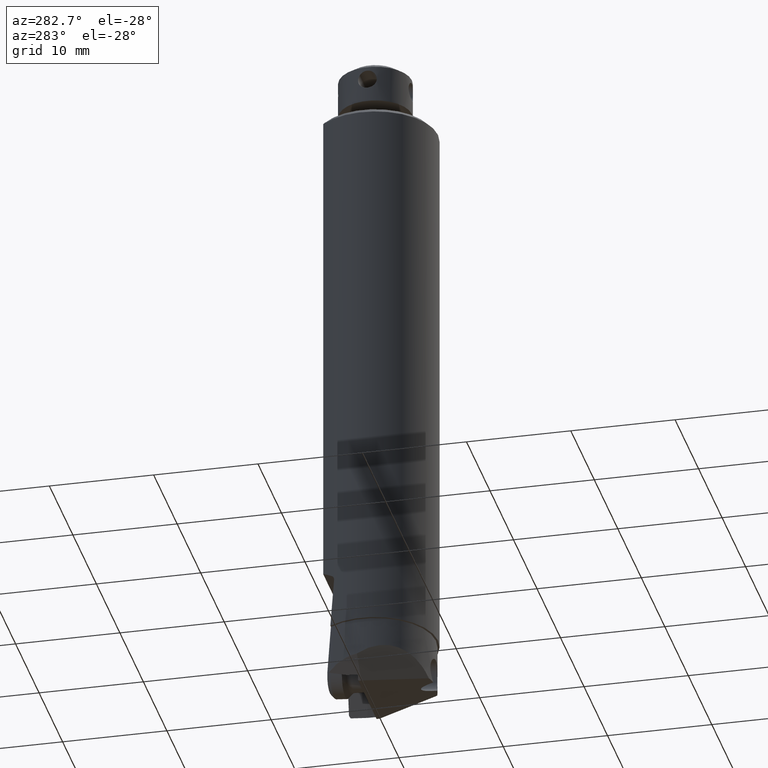
[diagram: clean part render]
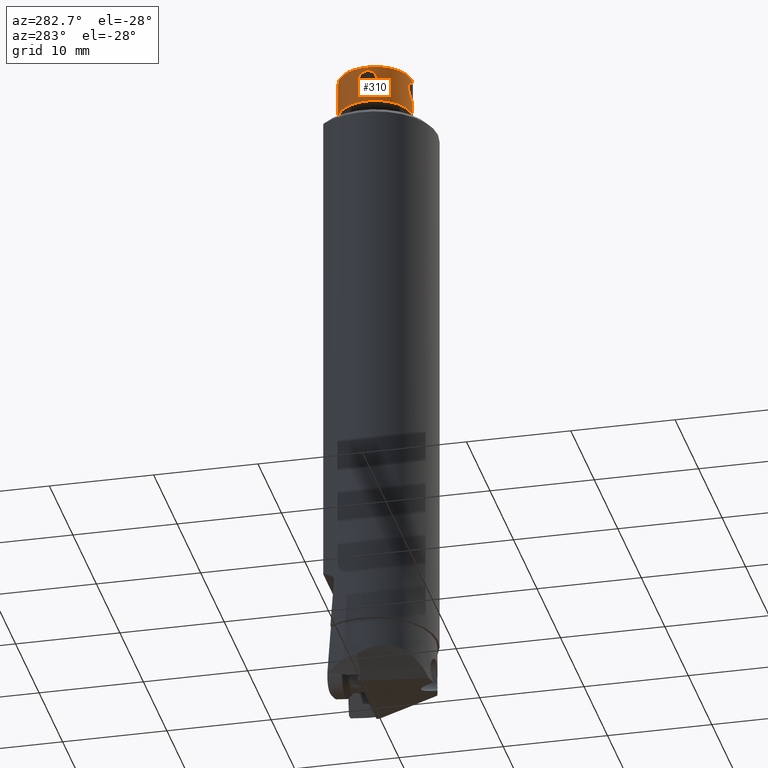
[diagram: same view with one face highlighted and labeled with its STEP entity id]
A machine part, auxiliary view. The second image highlights one B-rep face of the part: STEP entity #310.
In plain terms, the highlighted cylindrical surface (partial cylindrical patch) has radius 3.5 mm, axis along (0, 0, -1).
Its self-contained STEP definition (entity closure, byte-faithful):
#95=CYLINDRICAL_SURFACE('',#1784,3.5);
#235=B_SPLINE_CURVE_WITH_KNOTS('',3,(#2981,#2982,#2983,#2984,#2985,#2986,
#2987,#2988,#2989,#2990,#2991,#2992,#2993,#2994,#2995,#2996,#2997,#2998,
#2999,#3000,#3001,#3002,#3003,#3004,#3005,#3006,#3007,#3008,#3009,#3010,
#3011),.UNSPECIFIED.,.F.,.F.,(4,3,3,3,3,3,3,3,3,3,4),(0.,0.105055592854219,
0.209973483271902,0.316968257273214,0.425721338797996,0.532143976428389,
0.635744158866789,0.740441191041927,0.848379247550177,0.956767143181926,
1.),.UNSPECIFIED.);
#237=B_SPLINE_CURVE_WITH_KNOTS('',3,(#3059,#3060,#3061,#3062,#3063,#3064,
#3065,#3066,#3067,#3068,#3069,#3070,#3071,#3072,#3073,#3074,#3075,#3076,
#3077,#3078,#3079,#3080,#3081,#3082,#3083,#3084,#3085,#3086,#3087,#3088,
#3089),.UNSPECIFIED.,.F.,.F.,(4,3,3,3,3,3,3,3,3,3,4),(0.,0.105055592854219,
0.209973483271902,0.316968257273214,0.425721338797995,0.532143976428389,
0.635744158866789,0.740441191041927,0.848379247550177,0.956767143181926,
1.),.UNSPECIFIED.);
#238=B_SPLINE_CURVE_WITH_KNOTS('',3,(#3092,#3093,#3094,#3095,#3096,#3097,
#3098,#3099,#3100,#3101,#3102,#3103,#3104,#3105,#3106,#3107,#3108,#3109,
#3110,#3111,#3112,#3113,#3114,#3115,#3116,#3117,#3118,#3119,#3120,#3121,
#3122),.UNSPECIFIED.,.F.,.F.,(4,3,3,3,3,3,3,3,3,3,4),(0.,0.105055592854219,
0.209973483271902,0.316968257273214,0.425721338797995,0.532143976428389,
0.635744158866789,0.740441191041927,0.848379247550177,0.956767143181926,
1.),.UNSPECIFIED.);
#239=B_SPLINE_CURVE_WITH_KNOTS('',3,(#3123,#3124,#3125,#3126,#3127,#3128,
#3129,#3130,#3131,#3132,#3133,#3134,#3135,#3136,#3137,#3138,#3139,#3140,
#3141,#3142,#3143,#3144,#3145,#3146,#3147,#3148,#3149,#3150,#3151,#3152,
#3153),.UNSPECIFIED.,.F.,.F.,(4,3,3,3,3,3,3,3,3,3,4),(0.,0.105055592854219,
0.209973483271902,0.316968257273214,0.425721338797995,0.532143976428389,
0.635744158866789,0.740441191041927,0.848379247550177,0.956767143181926,
1.),.UNSPECIFIED.);
#310=ADVANCED_FACE('',(#382,#383),#95,.T.);
#382=FACE_BOUND('',#442,.T.);
#383=FACE_BOUND('',#443,.T.);
#442=EDGE_LOOP('',(#943,#944,#945,#946,#947,#948,#949,#950));
#443=EDGE_LOOP('',(#951,#952));
#543=LINE('',#2747,#639);
#544=LINE('',#2752,#640);
#545=LINE('',#2786,#641);
#546=LINE('',#2787,#642);
#639=VECTOR('',#2144,1.);
#640=VECTOR('',#2147,1.);
#641=VECTOR('',#2148,1.);
#642=VECTOR('',#2149,1.);
#943=ORIENTED_EDGE('',*,*,#1412,.F.);
#944=ORIENTED_EDGE('',*,*,#1432,.T.);
#945=ORIENTED_EDGE('',*,*,#1410,.F.);
#946=ORIENTED_EDGE('',*,*,#1433,.T.);
#947=ORIENTED_EDGE('',*,*,#1415,.F.);
#948=ORIENTED_EDGE('',*,*,#1407,.T.);
#949=ORIENTED_EDGE('',*,*,#1414,.F.);
#950=ORIENTED_EDGE('',*,*,#1427,.T.);
#951=ORIENTED_EDGE('',*,*,#1431,.T.);
#952=ORIENTED_EDGE('',*,*,#1434,.F.);
#1222=VERTEX_POINT('',#2742);
#1223=VERTEX_POINT('',#2743);
#1224=VERTEX_POINT('',#2748);
#1225=VERTEX_POINT('',#2749);
#1226=VERTEX_POINT('',#2751);
#1227=VERTEX_POINT('',#2753);
#1228=VERTEX_POINT('',#2785);
#1229=VERTEX_POINT('',#2788);
#1234=VERTEX_POINT('',#3056);
#1235=VERTEX_POINT('',#3058);
#1407=EDGE_CURVE('',#1222,#1223,#1556,.T.);
#1410=EDGE_CURVE('',#1224,#1225,#543,.T.);
#1412=EDGE_CURVE('',#1226,#1227,#544,.T.);
#1414=EDGE_CURVE('',#1228,#1223,#545,.T.);
#1415=EDGE_CURVE('',#1222,#1229,#546,.T.);
#1427=EDGE_CURVE('',#1228,#1227,#235,.T.);
#1431=EDGE_CURVE('',#1234,#1235,#237,.T.);
#1432=EDGE_CURVE('',#1226,#1225,#1560,.T.);
#1433=EDGE_CURVE('',#1224,#1229,#238,.T.);
#1434=EDGE_CURVE('',#1234,#1235,#239,.T.);
#1556=CIRCLE('',#1771,3.5);
#1560=CIRCLE('',#1783,3.5);
#1771=AXIS2_PLACEMENT_3D('',#2741,#2136,#2137);
#1783=AXIS2_PLACEMENT_3D('',#3091,#2172,#2173);
#1784=AXIS2_PLACEMENT_3D('',#3154,#2174,#2175);
#2136=DIRECTION('',(0.,0.,1.));
#2137=DIRECTION('',(0.,1.,0.));
#2144=DIRECTION('',(0.,1.218148624344E-13,1.));
#2147=DIRECTION('',(0.,5.971316786002E-14,-1.));
#2148=DIRECTION('',(0.,0.,-1.));
#2149=DIRECTION('',(0.,0.,1.));
#2172=DIRECTION('',(0.,0.,-1.));
#2173=DIRECTION('',(0.,-1.,0.));
#2174=DIRECTION('',(0.,0.,-1.));
#2175=DIRECTION('',(0.,-1.,0.));
#2741=CARTESIAN_POINT('',(0.,0.,2.));
#2742=CARTESIAN_POINT('',(0.,3.5,2.));
#2743=CARTESIAN_POINT('',(0.,-3.5,2.));
#2747=CARTESIAN_POINT('',(0.,3.5,5.2));
#2748=CARTESIAN_POINT('',(-5.88435878573898E-44,3.5,5.2));
#2749=CARTESIAN_POINT('',(0.,3.5,5.571851993258));
#2751=CARTESIAN_POINT('',(0.,-3.5,5.571851993258));
#2752=CARTESIAN_POINT('',(0.,-3.5,5.571851993258));
#2753=CARTESIAN_POINT('',(0.,-3.49999999999999,5.2));
#2785=CARTESIAN_POINT('',(-5.81593600916062E-44,-3.5,3.4));
#2786=CARTESIAN_POINT('',(0.,-3.5,3.4));
#2787=CARTESIAN_POINT('',(0.,3.5,2.));
#2788=CARTESIAN_POINT('',(0.,3.5,3.4));
#2981=CARTESIAN_POINT('',(-5.81593600916062E-44,-3.5,3.4));
#2982=CARTESIAN_POINT('',(-0.0989218744088053,-3.5,3.4));
#2983=CARTESIAN_POINT('',(-0.199201916507027,-3.49557967444679,3.41679958258184));
#2984=CARTESIAN_POINT('',(-0.292462345289609,-3.48775942068654,3.44884444630391));
#2985=CARTESIAN_POINT('',(-0.385653293282061,-3.47994499316382,3.48086543599408));
#2986=CARTESIAN_POINT('',(-0.474388112269073,-3.46858914699378,3.52891383947833));
#2987=CARTESIAN_POINT('',(-0.551858996280658,-3.45621927085422,3.58904877226064));
#2988=CARTESIAN_POINT('',(-0.630843494678761,-3.44360771395004,3.65035861224264));
#2989=CARTESIAN_POINT('',(-0.700299070238034,-3.42967869961967,3.725898222561));
#2990=CARTESIAN_POINT('',(-0.754795952742115,-3.41764291138266,3.80981322975408));
#2991=CARTESIAN_POINT('',(-0.810138523078682,-3.40542035063318,3.89503043805089));
#2992=CARTESIAN_POINT('',(-0.851572551095844,-3.39491180861869,3.99135667712239));
#2993=CARTESIAN_POINT('',(-0.875328496513038,-3.38877559351342,4.09071544922708));
#2994=CARTESIAN_POINT('',(-0.898578079927212,-3.38277017287316,4.18795637226379));
#2995=CARTESIAN_POINT('',(-0.905506381035334,-3.38085294249583,4.29086203705817));
#2996=CARTESIAN_POINT('',(-0.895440198946558,-3.3835169351003,4.39048121413061));
#2997=CARTESIAN_POINT('',(-0.885631064213395,-3.38611290069629,4.48755654232281));
#2998=CARTESIAN_POINT('',(-0.859473070074471,-3.39308357164788,4.58414594943094));
#2999=CARTESIAN_POINT('',(-0.819268796346518,-3.40276338280124,4.67255689408858));
#3000=CARTESIAN_POINT('',(-0.778627708509221,-3.41254836382077,4.76192841195065));
#3001=CARTESIAN_POINT('',(-0.722599852143059,-3.42527455332161,4.84536300404751));
#3002=CARTESIAN_POINT('',(-0.655570363322954,-3.43805577306893,4.91662589852569));
#3003=CARTESIAN_POINT('',(-0.586519721728767,-3.45122238733743,4.99003759645439));
#3004=CARTESIAN_POINT('',(-0.503863099113152,-3.46472070332632,5.05255449024743));
#3005=CARTESIAN_POINT('',(-0.414123309070958,-3.47541391561985,5.09906312947359));
#3006=CARTESIAN_POINT('',(-0.324070858984615,-3.48614438385332,5.14573380822743));
#3007=CARTESIAN_POINT('',(-0.224275541302938,-3.49426790521123,5.17754803355981));
#3008=CARTESIAN_POINT('',(-0.123305038298164,-3.49782730670488,5.1915132458524));
#3009=CARTESIAN_POINT('',(-0.0825131725552305,-3.49926529724204,5.19715516154024));
#3010=CARTESIAN_POINT('',(-0.0412052829161883,-3.49999999999999,5.2));
#3011=CARTESIAN_POINT('',(0.,-3.49999999999999,5.2));
#3056=CARTESIAN_POINT('',(-3.5,0.,5.2));
#3058=CARTESIAN_POINT('',(-3.5,5.81593600916062E-44,3.4));
#3059=CARTESIAN_POINT('',(-3.5,0.,5.2));
#3060=CARTESIAN_POINT('',(-3.5,-0.0989218744088053,5.2));
#3061=CARTESIAN_POINT('',(-3.49557967444679,-0.199201916507027,5.18320041741816));
#3062=CARTESIAN_POINT('',(-3.48775942068654,-0.292462345289609,5.15115555369609));
#3063=CARTESIAN_POINT('',(-3.47994499316382,-0.385653293282061,5.11913456400592));
#3064=CARTESIAN_POINT('',(-3.46858914699378,-0.474388112269073,5.07108616052167));
#3065=CARTESIAN_POINT('',(-3.45621927085422,-0.551858996280658,5.01095122773936));
#3066=CARTESIAN_POINT('',(-3.44360771395004,-0.630843494678761,4.94964138775736));
#3067=CARTESIAN_POINT('',(-3.42967869961967,-0.700299070238035,4.87410177743901));
#3068=CARTESIAN_POINT('',(-3.41764291138266,-0.754795952742115,4.79018677024592));
#3069=CARTESIAN_POINT('',(-3.40542035063318,-0.810138523078682,4.70496956194911));
#3070=CARTESIAN_POINT('',(-3.39491180861869,-0.851572551095843,4.60864332287761));
#3071=CARTESIAN_POINT('',(-3.38877559351342,-0.875328496513038,4.50928455077292));
#3072=CARTESIAN_POINT('',(-3.38277017287316,-0.898578079927212,4.41204362773621));
#3073=CARTESIAN_POINT('',(-3.38085294249583,-0.905506381035334,4.30913796294183));
#3074=CARTESIAN_POINT('',(-3.3835169351003,-0.895440198946558,4.20951878586939));
#3075=CARTESIAN_POINT('',(-3.38611290069629,-0.885631064213395,4.11244345767719));
#3076=CARTESIAN_POINT('',(-3.39308357164788,-0.859473070074472,4.01585405056906));
#3077=CARTESIAN_POINT('',(-3.40276338280124,-0.819268796346518,3.92744310591142));
#3078=CARTESIAN_POINT('',(-3.41254836382077,-0.778627708509221,3.83807158804935));
#3079=CARTESIAN_POINT('',(-3.42527455332161,-0.722599852143059,3.75463699595249));
#3080=CARTESIAN_POINT('',(-3.43805577306893,-0.655570363322954,3.68337410147431));
#3081=CARTESIAN_POINT('',(-3.45122238733743,-0.586519721728767,3.60996240354561));
#3082=CARTESIAN_POINT('',(-3.46472070332632,-0.503863099113152,3.54744550975257));
#3083=CARTESIAN_POINT('',(-3.47541391561985,-0.414123309070959,3.50093687052641));
#3084=CARTESIAN_POINT('',(-3.48614438385332,-0.324070858984616,3.45426619177257));
#3085=CARTESIAN_POINT('',(-3.49426790521123,-0.224275541302939,3.42245196644019));
#3086=CARTESIAN_POINT('',(-3.49782730670488,-0.123305038298164,3.4084867541476));
#3087=CARTESIAN_POINT('',(-3.49926529724204,-0.0825131725552306,3.40284483845976));
#3088=CARTESIAN_POINT('',(-3.5,-0.0412052829161885,3.4));
#3089=CARTESIAN_POINT('',(-3.5,5.81593600916062E-44,3.4));
#3091=CARTESIAN_POINT('',(0.,0.,5.571851993258));
#3092=CARTESIAN_POINT('',(-5.88435878573898E-44,3.5,5.2));
#3093=CARTESIAN_POINT('',(-0.0989218744088053,3.5,5.2));
#3094=CARTESIAN_POINT('',(-0.199201916507027,3.49557967444679,5.18320041741816));
#3095=CARTESIAN_POINT('',(-0.292462345289609,3.48775942068654,5.15115555369609));
#3096=CARTESIAN_POINT('',(-0.385653293282061,3.47994499316382,5.11913456400592));
#3097=CARTESIAN_POINT('',(-0.474388112269073,3.46858914699378,5.07108616052167));
#3098=CARTESIAN_POINT('',(-0.551858996280658,3.45621927085422,5.01095122773936));
#3099=CARTESIAN_POINT('',(-0.630843494678761,3.44360771395004,4.94964138775736));
#3100=CARTESIAN_POINT('',(-0.700299070238035,3.42967869961967,4.87410177743901));
#3101=CARTESIAN_POINT('',(-0.754795952742115,3.41764291138266,4.79018677024592));
#3102=CARTESIAN_POINT('',(-0.810138523078682,3.40542035063318,4.70496956194911));
#3103=CARTESIAN_POINT('',(-0.851572551095843,3.39491180861869,4.60864332287761));
#3104=CARTESIAN_POINT('',(-0.875328496513038,3.38877559351342,4.50928455077292));
#3105=CARTESIAN_POINT('',(-0.898578079927212,3.38277017287316,4.41204362773621));
#3106=CARTESIAN_POINT('',(-0.905506381035334,3.38085294249583,4.30913796294183));
#3107=CARTESIAN_POINT('',(-0.895440198946558,3.3835169351003,4.20951878586939));
#3108=CARTESIAN_POINT('',(-0.885631064213395,3.38611290069629,4.11244345767719));
#3109=CARTESIAN_POINT('',(-0.859473070074472,3.39308357164788,4.01585405056906));
#3110=CARTESIAN_POINT('',(-0.819268796346518,3.40276338280124,3.92744310591142));
#3111=CARTESIAN_POINT('',(-0.778627708509221,3.41254836382077,3.83807158804935));
#3112=CARTESIAN_POINT('',(-0.722599852143059,3.42527455332161,3.75463699595249));
#3113=CARTESIAN_POINT('',(-0.655570363322954,3.43805577306893,3.68337410147431));
#3114=CARTESIAN_POINT('',(-0.586519721728767,3.45122238733743,3.60996240354561));
#3115=CARTESIAN_POINT('',(-0.503863099113152,3.46472070332632,3.54744550975257));
#3116=CARTESIAN_POINT('',(-0.414123309070959,3.47541391561985,3.50093687052641));
#3117=CARTESIAN_POINT('',(-0.324070858984616,3.48614438385332,3.45426619177257));
#3118=CARTESIAN_POINT('',(-0.224275541302939,3.49426790521123,3.42245196644019));
#3119=CARTESIAN_POINT('',(-0.123305038298164,3.49782730670488,3.4084867541476));
#3120=CARTESIAN_POINT('',(-0.0825131725552306,3.49926529724204,3.40284483845976));
#3121=CARTESIAN_POINT('',(-0.0412052829161885,3.5,3.4));
#3122=CARTESIAN_POINT('',(0.,3.5,3.4));
#3123=CARTESIAN_POINT('',(-3.5,0.,5.2));
#3124=CARTESIAN_POINT('',(-3.5,0.0989218744088053,5.2));
#3125=CARTESIAN_POINT('',(-3.49557967444679,0.199201916507027,5.18320041741816));
#3126=CARTESIAN_POINT('',(-3.48775942068654,0.292462345289609,5.15115555369609));
#3127=CARTESIAN_POINT('',(-3.47994499316382,0.385653293282061,5.11913456400592));
#3128=CARTESIAN_POINT('',(-3.46858914699378,0.474388112269073,5.07108616052167));
#3129=CARTESIAN_POINT('',(-3.45621927085422,0.551858996280658,5.01095122773936));
#3130=CARTESIAN_POINT('',(-3.44360771395004,0.630843494678761,4.94964138775736));
#3131=CARTESIAN_POINT('',(-3.42967869961967,0.700299070238035,4.87410177743901));
#3132=CARTESIAN_POINT('',(-3.41764291138266,0.754795952742115,4.79018677024592));
#3133=CARTESIAN_POINT('',(-3.40542035063318,0.810138523078682,4.70496956194911));
#3134=CARTESIAN_POINT('',(-3.39491180861869,0.851572551095843,4.60864332287761));
#3135=CARTESIAN_POINT('',(-3.38877559351342,0.875328496513038,4.50928455077292));
#3136=CARTESIAN_POINT('',(-3.38277017287316,0.898578079927212,4.41204362773621));
#3137=CARTESIAN_POINT('',(-3.38085294249583,0.905506381035334,4.30913796294183));
#3138=CARTESIAN_POINT('',(-3.3835169351003,0.895440198946558,4.20951878586939));
#3139=CARTESIAN_POINT('',(-3.38611290069629,0.885631064213395,4.11244345767719));
#3140=CARTESIAN_POINT('',(-3.39308357164788,0.859473070074472,4.01585405056906));
#3141=CARTESIAN_POINT('',(-3.40276338280124,0.819268796346518,3.92744310591142));
#3142=CARTESIAN_POINT('',(-3.41254836382077,0.778627708509221,3.83807158804935));
#3143=CARTESIAN_POINT('',(-3.42527455332161,0.722599852143059,3.75463699595249));
#3144=CARTESIAN_POINT('',(-3.43805577306893,0.655570363322954,3.68337410147431));
#3145=CARTESIAN_POINT('',(-3.45122238733743,0.586519721728767,3.60996240354561));
#3146=CARTESIAN_POINT('',(-3.46472070332632,0.503863099113152,3.54744550975257));
#3147=CARTESIAN_POINT('',(-3.47541391561985,0.414123309070959,3.50093687052641));
#3148=CARTESIAN_POINT('',(-3.48614438385332,0.324070858984616,3.45426619177257));
#3149=CARTESIAN_POINT('',(-3.49426790521123,0.224275541302939,3.42245196644019));
#3150=CARTESIAN_POINT('',(-3.49782730670488,0.123305038298164,3.4084867541476));
#3151=CARTESIAN_POINT('',(-3.49926529724204,0.0825131725552306,3.40284483845976));
#3152=CARTESIAN_POINT('',(-3.5,0.0412052829161885,3.4));
#3153=CARTESIAN_POINT('',(-3.5,5.81593600916062E-44,3.4));
#3154=CARTESIAN_POINT('',(0.,0.,5.643289033123));